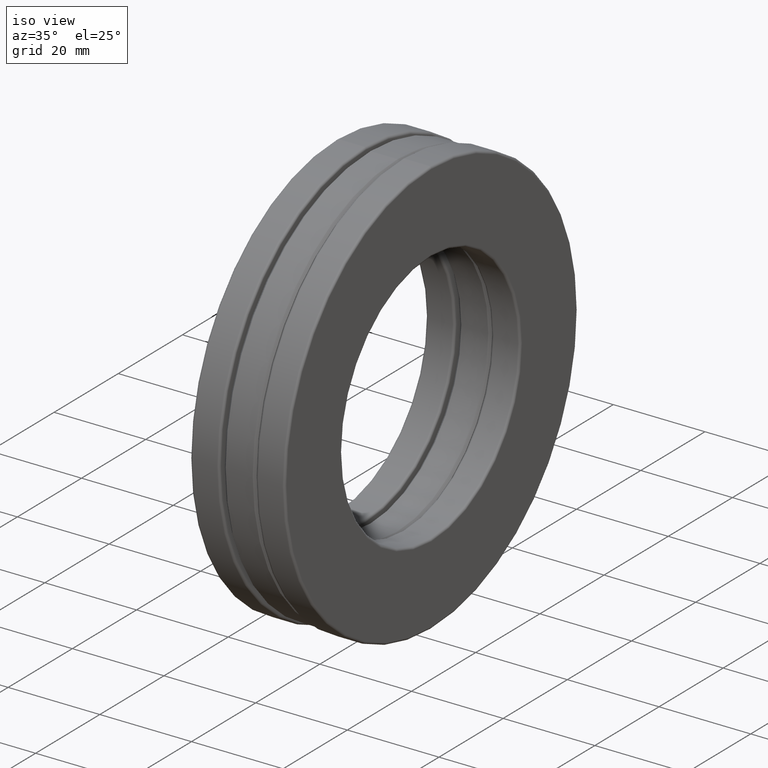
[diagram: clean part render]
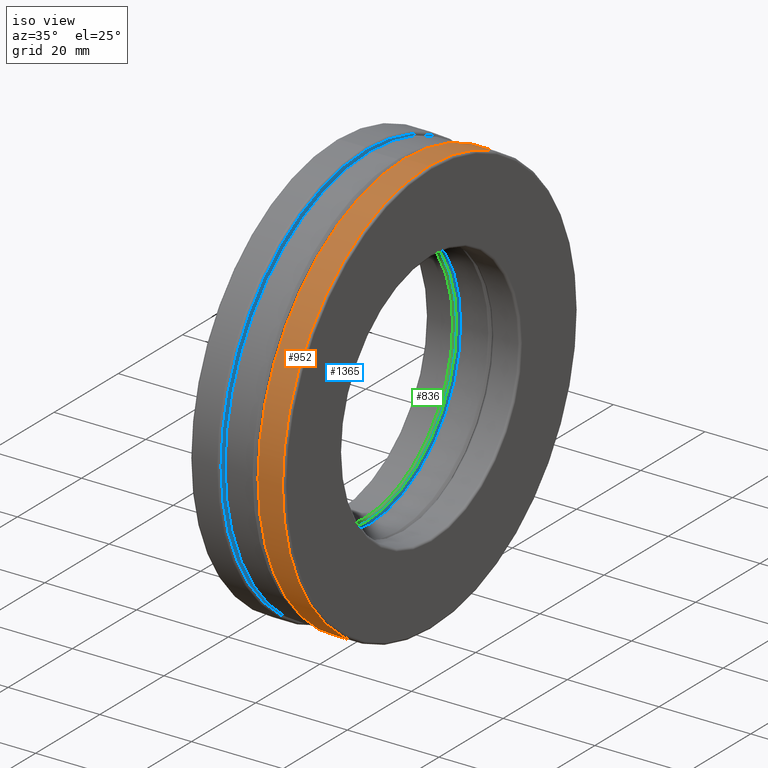
[diagram: same view with three faces highlighted in distinct colors, each labeled with its STEP entity id]
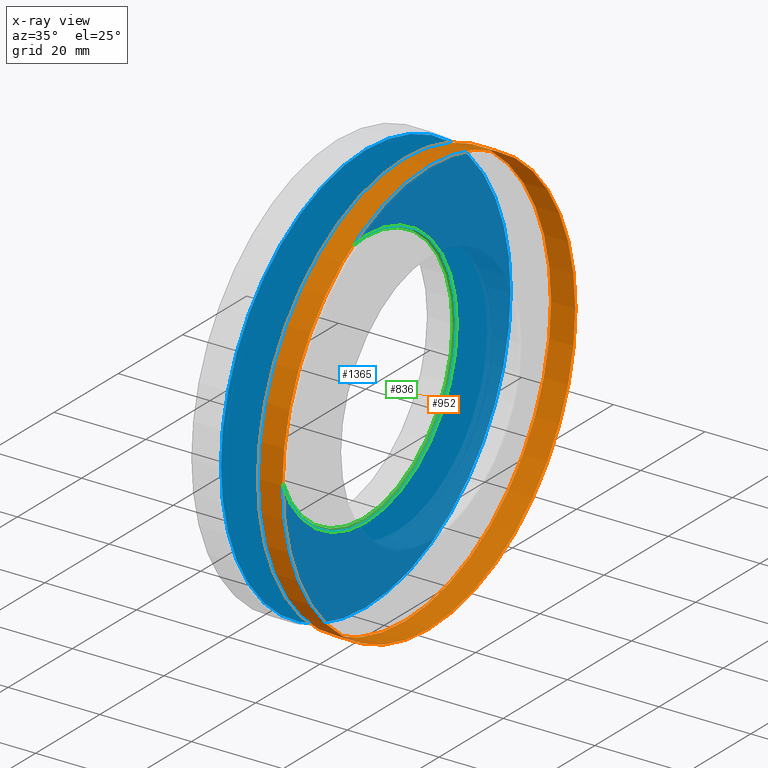
[diagram: x-ray of the same camera — body ghosted, the three highlighted faces saturated]
A machine part, iso view with three faces highlighted in distinct colors.
The next image is the same camera in x-ray (body ghosted, the three faces saturated) — at least one of them is partly hidden behind the body in this view.
Their STEP definitions:

[orange] entity #952 — the highlighted cylindrical surface (bore or boss wall) has radius 45.6406 mm, axis along (-1, -0, -0).
#126 = CARTESIAN_POINT ( 'NONE',  ( 0.1759999999999995500, 0.0000000000000000000, 0.0000000000000000000 ) ) ;
#185 = DIRECTION ( 'NONE',  ( -1.000000000000000000, -0.0000000000000000000, -0.0000000000000000000 ) ) ;
#198 = EDGE_CURVE ( 'NONE', #312, #312, #1217, .T. ) ;
#229 = DIRECTION ( 'NONE',  ( -1.000000000000000000, -0.0000000000000000000, -0.0000000000000000000 ) ) ;
#294 = FACE_OUTER_BOUND ( 'NONE', #1231, .T. ) ;
#312 = VERTEX_POINT ( 'NONE', #895 ) ;
#338 = AXIS2_PLACEMENT_3D ( 'NONE', #126, #229, #695 ) ;
#384 = EDGE_CURVE ( 'NONE', #902, #902, #737, .T. ) ;
#506 = ORIENTED_EDGE ( 'NONE', *, *, #384, .F. ) ;
#639 = AXIS2_PLACEMENT_3D ( 'NONE', #874, #1326, #1449 ) ;
#680 = CARTESIAN_POINT ( 'NONE',  ( 0.1759999999999995500, 0.0000000000000000000, 1.796875000000000000 ) ) ;
#695 = DIRECTION ( 'NONE',  ( 0.0000000000000000000, 0.0000000000000000000, 1.000000000000000000 ) ) ;
#737 = CIRCLE ( 'NONE', #338, 1.796875000000000000 ) ;
#793 = EDGE_LOOP ( 'NONE', ( #506 ) ) ;
#874 = CARTESIAN_POINT ( 'NONE',  ( 0.3860000000000006200, 0.0000000000000000000, 0.0000000000000000000 ) ) ;
#895 = CARTESIAN_POINT ( 'NONE',  ( 0.3860000000000006200, 0.0000000000000000000, 1.796875000000000000 ) ) ;
#902 = VERTEX_POINT ( 'NONE', #680 ) ;
#907 = AXIS2_PLACEMENT_3D ( 'NONE', #1213, #185, #982 ) ;
#952 = ADVANCED_FACE ( 'NONE', ( #1065, #294 ), #1425, .T. ) ;
#982 = DIRECTION ( 'NONE',  ( 0.0000000000000000000, 0.0000000000000000000, 1.000000000000000000 ) ) ;
#1065 = FACE_OUTER_BOUND ( 'NONE', #793, .T. ) ;
#1126 = ORIENTED_EDGE ( 'NONE', *, *, #198, .T. ) ;
#1213 = CARTESIAN_POINT ( 'NONE',  ( 0.0000000000000000000, 0.0000000000000000000, 0.0000000000000000000 ) ) ;
#1217 = CIRCLE ( 'NONE', #639, 1.796875000000000000 ) ;
#1231 = EDGE_LOOP ( 'NONE', ( #1126 ) ) ;
#1326 = DIRECTION ( 'NONE',  ( -1.000000000000000000, -0.0000000000000000000, -0.0000000000000000000 ) ) ;
#1425 = CYLINDRICAL_SURFACE ( 'NONE', #907, 1.796875000000000000 ) ;
#1449 = DIRECTION ( 'NONE',  ( 0.0000000000000000000, 0.0000000000000000000, 1.000000000000000000 ) ) ;

[blue] entity #1365 — the highlighted planar face has unit normal (1, 0, 0).
#7 = DIRECTION ( 'NONE',  ( -1.000000000000000000, -0.0000000000000000000, -0.0000000000000000000 ) ) ;
#67 = VERTEX_POINT ( 'NONE', #1253 ) ;
#80 = CARTESIAN_POINT ( 'NONE',  ( -0.1559999999999999200, -8.033332460162572600E-018, 0.0000000000000000000 ) ) ;
#152 = FACE_OUTER_BOUND ( 'NONE', #537, .T. ) ;
#208 = CARTESIAN_POINT ( 'NONE',  ( -0.1559999999999999400, 0.0000000000000000000, 0.0000000000000000000 ) ) ;
#223 = AXIS2_PLACEMENT_3D ( 'NONE', #208, #1453, #1008 ) ;
#246 = DIRECTION ( 'NONE',  ( 0.0000000000000000000, 0.0000000000000000000, 1.000000000000000000 ) ) ;
#280 = AXIS2_PLACEMENT_3D ( 'NONE', #913, #7, #246 ) ;
#319 = DIRECTION ( 'NONE',  ( 0.0000000000000000000, 0.0000000000000000000, -1.000000000000000000 ) ) ;
#370 = CIRCLE ( 'NONE', #280, 1.113750000000000000 ) ;
#416 = FACE_BOUND ( 'NONE', #1414, .T. ) ;
#514 = AXIS2_PLACEMENT_3D ( 'NONE', #80, #1228, #319 ) ;
#535 = EDGE_CURVE ( 'NONE', #547, #547, #370, .T. ) ;
#537 = EDGE_LOOP ( 'NONE', ( #1102 ) ) ;
#547 = VERTEX_POINT ( 'NONE', #1340 ) ;
#913 = CARTESIAN_POINT ( 'NONE',  ( -0.1559999999999999200, 0.0000000000000000000, 0.0000000000000000000 ) ) ;
#987 = CIRCLE ( 'NONE', #223, 1.776875000000000400 ) ;
#1003 = ORIENTED_EDGE ( 'NONE', *, *, #535, .T. ) ;
#1008 = DIRECTION ( 'NONE',  ( 0.0000000000000000000, 0.0000000000000000000, 1.000000000000000000 ) ) ;
#1102 = ORIENTED_EDGE ( 'NONE', *, *, #1373, .F. ) ;
#1209 = PLANE ( 'NONE',  #514 ) ;
#1228 = DIRECTION ( 'NONE',  ( 1.000000000000000000, 0.0000000000000000000, 0.0000000000000000000 ) ) ;
#1253 = CARTESIAN_POINT ( 'NONE',  ( -0.1559999999999999400, 0.0000000000000000000, 1.776875000000000400 ) ) ;
#1340 = CARTESIAN_POINT ( 'NONE',  ( -0.1559999999999999200, 0.0000000000000000000, 1.113750000000000000 ) ) ;
#1365 = ADVANCED_FACE ( 'NONE', ( #416, #152 ), #1209, .T. ) ;
#1373 = EDGE_CURVE ( 'NONE', #67, #67, #987, .T. ) ;
#1414 = EDGE_LOOP ( 'NONE', ( #1003 ) ) ;
#1453 = DIRECTION ( 'NONE',  ( -1.000000000000000000, -0.0000000000000000000, -0.0000000000000000000 ) ) ;

[green] entity #836 — the highlighted toroidal blend (fillet) surface has major radius 28.2892 mm and minor (blend) radius 0.508 mm.
#7 = DIRECTION ( 'NONE',  ( -1.000000000000000000, -0.0000000000000000000, -0.0000000000000000000 ) ) ;
#28 = CIRCLE ( 'NONE', #531, 1.093750000000000000 ) ;
#83 = TOROIDAL_SURFACE ( 'NONE', #122, 1.113750000000000000, 0.02000000000000000700 ) ;
#122 = AXIS2_PLACEMENT_3D ( 'NONE', #1190, #392, #285 ) ;
#191 = DIRECTION ( 'NONE',  ( -1.000000000000000000, -0.0000000000000000000, -0.0000000000000000000 ) ) ;
#246 = DIRECTION ( 'NONE',  ( 0.0000000000000000000, 0.0000000000000000000, 1.000000000000000000 ) ) ;
#280 = AXIS2_PLACEMENT_3D ( 'NONE', #913, #7, #246 ) ;
#285 = DIRECTION ( 'NONE',  ( 0.0000000000000000000, 0.0000000000000000000, 1.000000000000000000 ) ) ;
#370 = CIRCLE ( 'NONE', #280, 1.113750000000000000 ) ;
#392 = DIRECTION ( 'NONE',  ( -1.000000000000000000, -0.0000000000000000000, -0.0000000000000000000 ) ) ;
#484 = CARTESIAN_POINT ( 'NONE',  ( -0.1759999999999998800, 0.0000000000000000000, 1.093750000000000000 ) ) ;
#531 = AXIS2_PLACEMENT_3D ( 'NONE', #1216, #191, #992 ) ;
#535 = EDGE_CURVE ( 'NONE', #547, #547, #370, .T. ) ;
#547 = VERTEX_POINT ( 'NONE', #1340 ) ;
#629 = EDGE_LOOP ( 'NONE', ( #823 ) ) ;
#823 = ORIENTED_EDGE ( 'NONE', *, *, #1247, .T. ) ;
#836 = ADVANCED_FACE ( 'NONE', ( #1440, #917 ), #83, .T. ) ;
#838 = ORIENTED_EDGE ( 'NONE', *, *, #535, .F. ) ;
#913 = CARTESIAN_POINT ( 'NONE',  ( -0.1559999999999999200, 0.0000000000000000000, 0.0000000000000000000 ) ) ;
#917 = FACE_OUTER_BOUND ( 'NONE', #629, .T. ) ;
#992 = DIRECTION ( 'NONE',  ( 0.0000000000000000000, 0.0000000000000000000, 1.000000000000000000 ) ) ;
#1164 = EDGE_LOOP ( 'NONE', ( #838 ) ) ;
#1190 = CARTESIAN_POINT ( 'NONE',  ( -0.1759999999999998800, 0.0000000000000000000, 0.0000000000000000000 ) ) ;
#1216 = CARTESIAN_POINT ( 'NONE',  ( -0.1759999999999998800, 0.0000000000000000000, 0.0000000000000000000 ) ) ;
#1247 = EDGE_CURVE ( 'NONE', #1341, #1341, #28, .T. ) ;
#1340 = CARTESIAN_POINT ( 'NONE',  ( -0.1559999999999999200, 0.0000000000000000000, 1.113750000000000000 ) ) ;
#1341 = VERTEX_POINT ( 'NONE', #484 ) ;
#1440 = FACE_OUTER_BOUND ( 'NONE', #1164, .T. ) ;